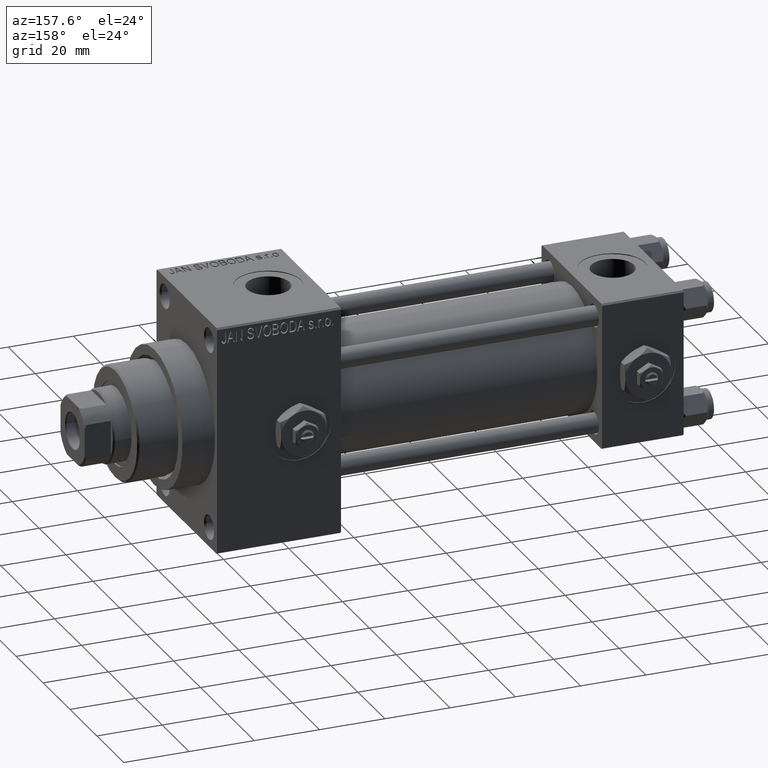
[diagram: clean part render]
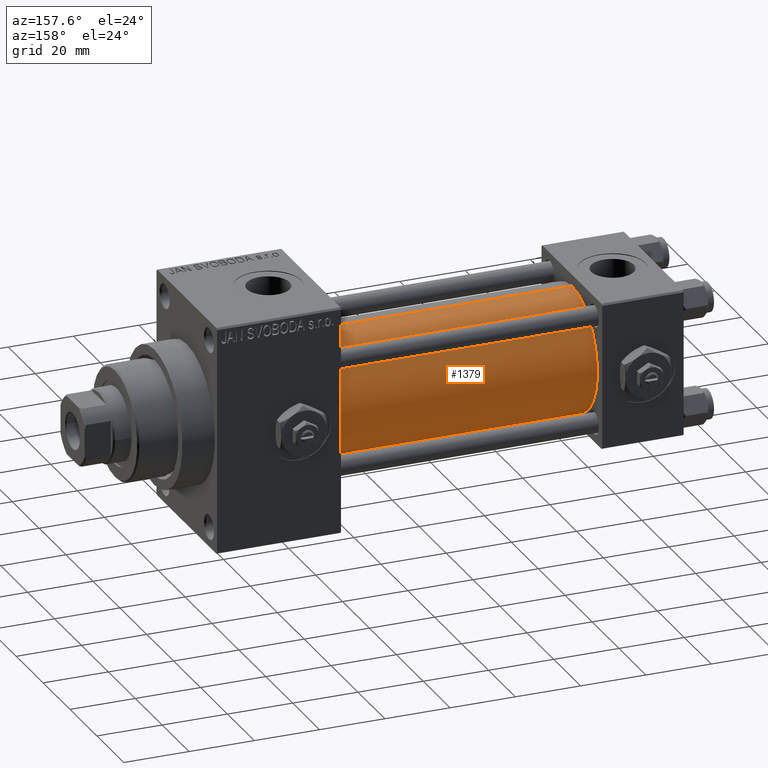
[diagram: same view with one face highlighted and labeled with its STEP entity id]
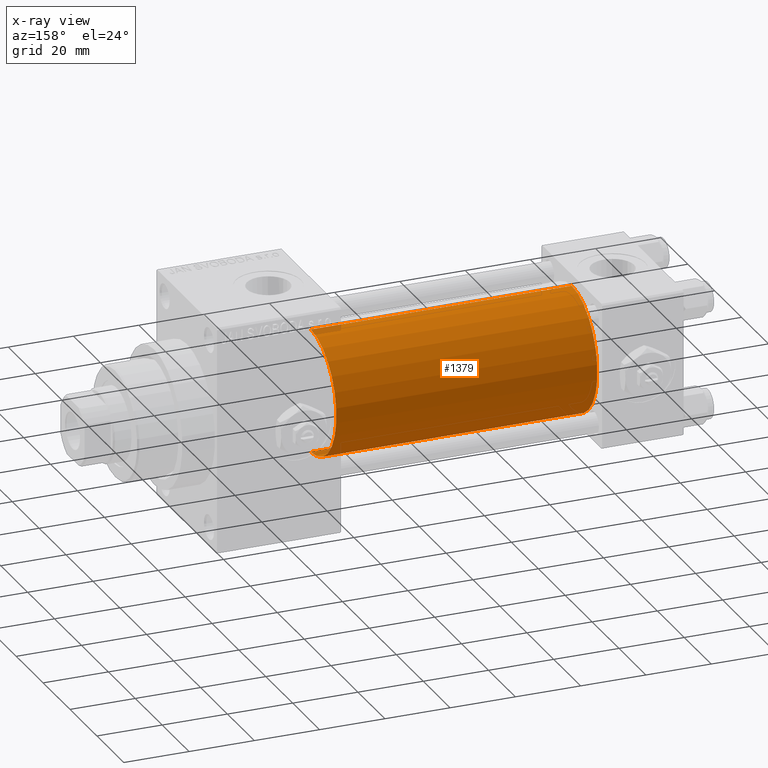
[diagram: x-ray of the same camera — body ghosted, the highlighted face saturated]
A machine part, auxiliary view. The second image highlights one B-rep face of the part: STEP entity #1379.
The next image is the same camera in x-ray: the body ghosted, the highlighted face saturated — about 1% of this face is hidden behind the body in this view.
In plain terms, the highlighted cylindrical surface (partial cylindrical patch) has radius 19 mm, axis along (-1, -0, -0).
Its self-contained STEP definition (entity closure, byte-faithful):
#613 = DIRECTION ( 'NONE',  ( 0.000000000000000000, 0.000000000000000000, 1.000000000000000000 ) ) ;
#1379 = ADVANCED_FACE ( 'NONE', ( #24187 ), #28161, .T. ) ;
#1825 = VECTOR ( 'NONE', #32777, 1000.000000000000000 ) ;
#2058 = DIRECTION ( 'NONE',  ( 0.000000000000000000, 0.000000000000000000, 1.000000000000000000 ) ) ;
#5483 = CARTESIAN_POINT ( 'NONE',  ( 105.0000000000000142, -2.752562955852396712E-16, -19.00000000000000000 ) ) ;
#5691 = DIRECTION ( 'NONE',  ( 1.000000000000000000, -0.000000000000000000, 0.000000000000000000 ) ) ;
#8019 = DIRECTION ( 'NONE',  ( 1.000000000000000000, 0.000000000000000000, 0.000000000000000000 ) ) ;
#9683 = CIRCLE ( 'NONE', #44632, 19.00000000000000000 ) ;
#11178 = CIRCLE ( 'NONE', #35007, 19.00000000000000000 ) ;
#13386 = LINE ( 'NONE', #43960, #1825 ) ;
#13746 = CARTESIAN_POINT ( 'NONE',  ( 105.0000000000000142, -2.602085213965210642E-15, 0.000000000000000000 ) ) ;
#15058 = CARTESIAN_POINT ( 'NONE',  ( 24.99999999999999289, -2.602085213965210642E-15, 19.00000000000000000 ) ) ;
#16166 = VERTEX_POINT ( 'NONE', #33080 ) ;
#19801 = DIRECTION ( 'NONE',  ( -1.000000000000000000, -0.000000000000000000, -0.000000000000000000 ) ) ;
#22452 = CARTESIAN_POINT ( 'NONE',  ( 105.0000000000000142, -2.602085213965210642E-15, 0.000000000000000000 ) ) ;
#23176 = DIRECTION ( 'NONE',  ( 0.000000000000000000, 0.000000000000000000, -1.000000000000000000 ) ) ;
#23419 = AXIS2_PLACEMENT_3D ( 'NONE', #13746, #47807, #2058 ) ;
#23525 = CARTESIAN_POINT ( 'NONE',  ( 105.0000000000000142, -2.602085213965210642E-15, 19.00000000000000000 ) ) ;
#23766 = VECTOR ( 'NONE', #19801, 1000.000000000000000 ) ;
#24187 = FACE_OUTER_BOUND ( 'NONE', #40884, .T. ) ;
#26892 = ORIENTED_EDGE ( 'NONE', *, *, #47018, .T. ) ;
#28161 = CYLINDRICAL_SURFACE ( 'NONE', #23419, 19.00000000000000000 ) ;
#32777 = DIRECTION ( 'NONE',  ( -1.000000000000000000, -0.000000000000000000, -0.000000000000000000 ) ) ;
#33080 = CARTESIAN_POINT ( 'NONE',  ( 24.99999999999999289, -2.752562955852396712E-16, -19.00000000000000000 ) ) ;
#34597 = ORIENTED_EDGE ( 'NONE', *, *, #38156, .F. ) ;
#34771 = EDGE_CURVE ( 'NONE', #40903, #39165, #38454, .T. ) ;
#35007 = AXIS2_PLACEMENT_3D ( 'NONE', #22452, #8019, #23176 ) ;
#38156 = EDGE_CURVE ( 'NONE', #45861, #40903, #11178, .T. ) ;
#38454 = LINE ( 'NONE', #23525, #23766 ) ;
#39165 = VERTEX_POINT ( 'NONE', #15058 ) ;
#39743 = CARTESIAN_POINT ( 'NONE',  ( 24.99999999999999289, -2.602085213965210642E-15, 0.000000000000000000 ) ) ;
#40884 = EDGE_LOOP ( 'NONE', ( #34597, #26892, #48714, #44299 ) ) ;
#40903 = VERTEX_POINT ( 'NONE', #41782 ) ;
#41782 = CARTESIAN_POINT ( 'NONE',  ( 105.0000000000000142, -2.602085213965210642E-15, 19.00000000000000000 ) ) ;
#43960 = CARTESIAN_POINT ( 'NONE',  ( 105.0000000000000142, -2.752562955852396712E-16, -19.00000000000000000 ) ) ;
#44299 = ORIENTED_EDGE ( 'NONE', *, *, #34771, .F. ) ;
#44632 = AXIS2_PLACEMENT_3D ( 'NONE', #39743, #5691, #613 ) ;
#44762 = EDGE_CURVE ( 'NONE', #16166, #39165, #9683, .T. ) ;
#45861 = VERTEX_POINT ( 'NONE', #5483 ) ;
#47018 = EDGE_CURVE ( 'NONE', #45861, #16166, #13386, .T. ) ;
#47807 = DIRECTION ( 'NONE',  ( -1.000000000000000000, -0.000000000000000000, -0.000000000000000000 ) ) ;
#48714 = ORIENTED_EDGE ( 'NONE', *, *, #44762, .T. ) ;